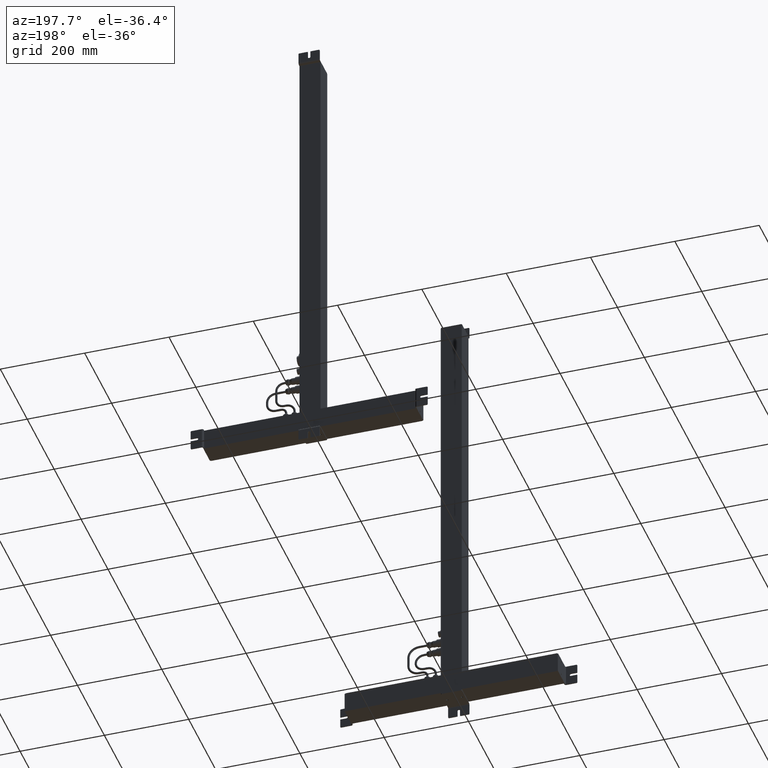
[diagram: clean part render]
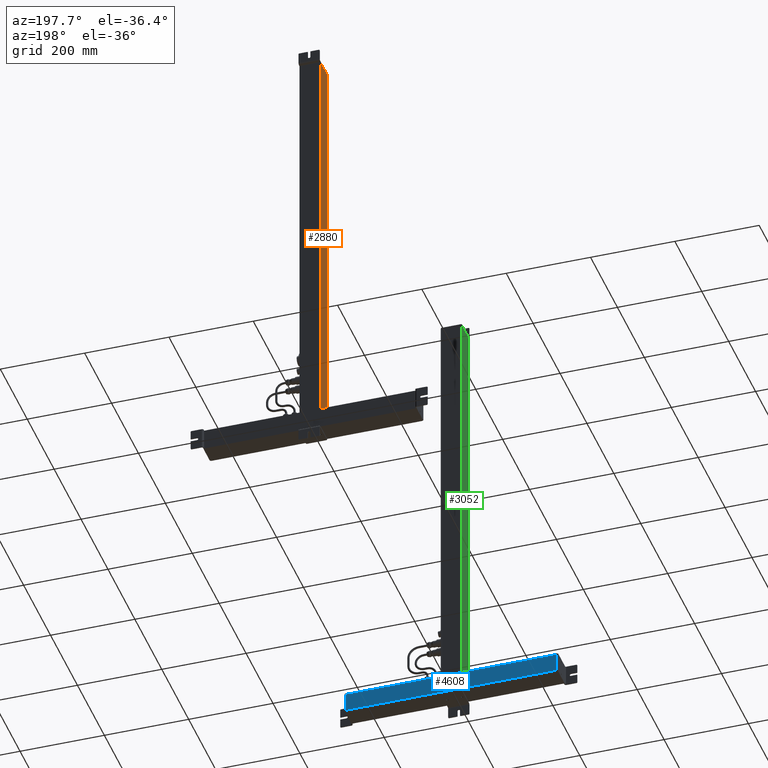
[diagram: same view with three faces highlighted in distinct colors, each labeled with its STEP entity id]
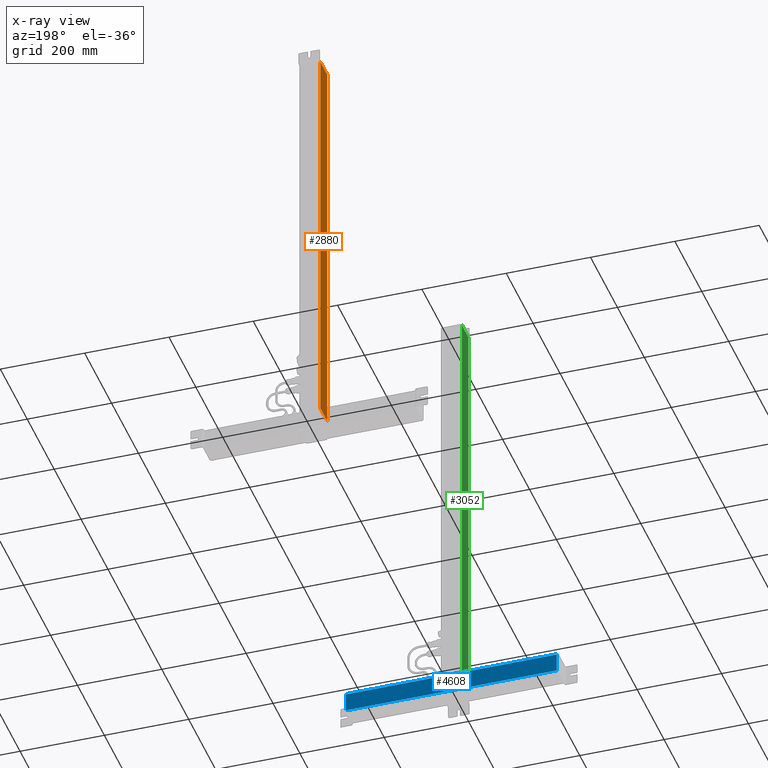
[diagram: x-ray of the same camera — body ghosted, the three highlighted faces saturated]
A machine part, auxiliary view with three faces highlighted in distinct colors.
The next image is the same camera in x-ray (body ghosted, the three faces saturated) — at least one of them is partly hidden behind the body in this view.
Their STEP definitions:

[orange] entity #2880 — the highlighted planar face has unit normal (-1, 0, 0).
#2828=CARTESIAN_POINT('Vertex',(50.,0.,0.)) ;
#2831=CARTESIAN_POINT('Line Origine',(50.,0.,486.)) ;
#2835=CARTESIAN_POINT('Vertex',(50.,0.,972.)) ;
#2850=CARTESIAN_POINT('Axis2P3D Location',(50.,2.90282621546E-015,0.)) ;
#2855=CARTESIAN_POINT('Line Origine',(50.,25.,0.)) ;
#2859=CARTESIAN_POINT('Vertex',(50.,50.,0.)) ;
#2862=CARTESIAN_POINT('Line Origine',(50.,50.,486.)) ;
#2866=CARTESIAN_POINT('Vertex',(50.,50.,972.)) ;
#2869=CARTESIAN_POINT('Line Origine',(50.,25.,972.)) ;
#2832=DIRECTION('Vector Direction',(0.,0.,1.)) ;
#2851=DIRECTION('Axis2P3D Direction',(1.,0.,0.)) ;
#2852=DIRECTION('Axis2P3D XDirection',(0.,1.,0.)) ;
#2856=DIRECTION('Vector Direction',(0.,1.,0.)) ;
#2863=DIRECTION('Vector Direction',(0.,0.,1.)) ;
#2870=DIRECTION('Vector Direction',(0.,1.,0.)) ;
#2853=AXIS2_PLACEMENT_3D('Plane Axis2P3D',#2850,#2851,#2852) ;
#2875=ORIENTED_EDGE('',*,*,#2837,.F.) ;
#2876=ORIENTED_EDGE('',*,*,#2861,.T.) ;
#2877=ORIENTED_EDGE('',*,*,#2868,.T.) ;
#2878=ORIENTED_EDGE('',*,*,#2873,.F.) ;
#2833=VECTOR('Line Direction',#2832,1.) ;
#2857=VECTOR('Line Direction',#2856,1.) ;
#2864=VECTOR('Line Direction',#2863,1.) ;
#2871=VECTOR('Line Direction',#2870,1.) ;
#2880=ADVANCED_FACE('PartBody',(#2879),#2854,.T.) ;
#2837=EDGE_CURVE('',#2829,#2836,#2834,.T.) ;
#2861=EDGE_CURVE('',#2829,#2860,#2858,.T.) ;
#2868=EDGE_CURVE('',#2860,#2867,#2865,.T.) ;
#2873=EDGE_CURVE('',#2836,#2867,#2872,.T.) ;
#2874=EDGE_LOOP('',(#2875,#2876,#2877,#2878)) ;
#2879=FACE_OUTER_BOUND('',#2874,.T.) ;
#2834=LINE('Line',#2831,#2833) ;
#2858=LINE('Line',#2855,#2857) ;
#2865=LINE('Line',#2862,#2864) ;
#2872=LINE('Line',#2869,#2871) ;
#2854=PLANE('Plane',#2853) ;
#2829=VERTEX_POINT('',#2828) ;
#2836=VERTEX_POINT('',#2835) ;
#2860=VERTEX_POINT('',#2859) ;
#2867=VERTEX_POINT('',#2866) ;

[blue] entity #4608 — the highlighted planar face has unit normal (0, 1, 0).
#4525=CARTESIAN_POINT('Vertex',(2.5,49.,0.)) ;
#4528=CARTESIAN_POINT('Line Origine',(25.,49.,0.)) ;
#4532=CARTESIAN_POINT('Vertex',(47.5,49.,0.)) ;
#4565=CARTESIAN_POINT('Vertex',(2.5,49.,500.)) ;
#4568=CARTESIAN_POINT('Line Origine',(2.5,49.,250.)) ;
#4585=CARTESIAN_POINT('Axis2P3D Location',(47.5,49.,0.)) ;
#4590=CARTESIAN_POINT('Line Origine',(47.5,49.,250.)) ;
#4594=CARTESIAN_POINT('Vertex',(47.5,49.,500.)) ;
#4597=CARTESIAN_POINT('Line Origine',(25.,49.,500.)) ;
#4529=DIRECTION('Vector Direction',(-1.,0.,0.)) ;
#4569=DIRECTION('Vector Direction',(0.,0.,1.)) ;
#4586=DIRECTION('Axis2P3D Direction',(0.,1.,-0.)) ;
#4587=DIRECTION('Axis2P3D XDirection',(-1.,0.,0.)) ;
#4591=DIRECTION('Vector Direction',(0.,0.,1.)) ;
#4598=DIRECTION('Vector Direction',(-1.,0.,0.)) ;
#4588=AXIS2_PLACEMENT_3D('Plane Axis2P3D',#4585,#4586,#4587) ;
#4603=ORIENTED_EDGE('',*,*,#4596,.F.) ;
#4604=ORIENTED_EDGE('',*,*,#4534,.F.) ;
#4605=ORIENTED_EDGE('',*,*,#4572,.T.) ;
#4606=ORIENTED_EDGE('',*,*,#4601,.F.) ;
#4530=VECTOR('Line Direction',#4529,1.) ;
#4570=VECTOR('Line Direction',#4569,1.) ;
#4592=VECTOR('Line Direction',#4591,1.) ;
#4599=VECTOR('Line Direction',#4598,1.) ;
#4608=ADVANCED_FACE('Body.2',(#4607),#4589,.T.) ;
#4534=EDGE_CURVE('',#4526,#4533,#4531,.F.) ;
#4572=EDGE_CURVE('',#4526,#4566,#4571,.T.) ;
#4596=EDGE_CURVE('',#4533,#4595,#4593,.T.) ;
#4601=EDGE_CURVE('',#4595,#4566,#4600,.T.) ;
#4602=EDGE_LOOP('',(#4603,#4604,#4605,#4606)) ;
#4607=FACE_OUTER_BOUND('',#4602,.T.) ;
#4531=LINE('Line',#4528,#4530) ;
#4571=LINE('Line',#4568,#4570) ;
#4593=LINE('Line',#4590,#4592) ;
#4600=LINE('Line',#4597,#4599) ;
#4589=PLANE('Plane',#4588) ;
#4526=VERTEX_POINT('',#4525) ;
#4533=VERTEX_POINT('',#4532) ;
#4566=VERTEX_POINT('',#4565) ;
#4595=VERTEX_POINT('',#4594) ;

[green] entity #3052 — the highlighted planar face has unit normal (-1, 0, 0).
#2815=CARTESIAN_POINT('Line Origine',(0.,0.,486.)) ;
#2819=CARTESIAN_POINT('Vertex',(0.,0.,0.)) ;
#2821=CARTESIAN_POINT('Vertex',(0.,0.,972.)) ;
#3009=CARTESIAN_POINT('Vertex',(9.32587340685E-015,50.,0.)) ;
#3012=CARTESIAN_POINT('Line Origine',(7.1054273576E-015,50.,486.)) ;
#3016=CARTESIAN_POINT('Vertex',(9.32587340685E-015,50.,972.)) ;
#3031=CARTESIAN_POINT('Axis2P3D Location',(0.,50.,0.)) ;
#3036=CARTESIAN_POINT('Line Origine',(0.,25.,0.)) ;
#3041=CARTESIAN_POINT('Line Origine',(0.,25.,972.)) ;
#2816=DIRECTION('Vector Direction',(0.,0.,1.)) ;
#3013=DIRECTION('Vector Direction',(0.,0.,1.)) ;
#3032=DIRECTION('Axis2P3D Direction',(-1.,0.,0.)) ;
#3033=DIRECTION('Axis2P3D XDirection',(0.,-1.,0.)) ;
#3037=DIRECTION('Vector Direction',(0.,-1.,0.)) ;
#3042=DIRECTION('Vector Direction',(0.,-1.,0.)) ;
#3034=AXIS2_PLACEMENT_3D('Plane Axis2P3D',#3031,#3032,#3033) ;
#3047=ORIENTED_EDGE('',*,*,#3018,.F.) ;
#3048=ORIENTED_EDGE('',*,*,#3040,.T.) ;
#3049=ORIENTED_EDGE('',*,*,#2823,.T.) ;
#3050=ORIENTED_EDGE('',*,*,#3045,.F.) ;
#2817=VECTOR('Line Direction',#2816,1.) ;
#3014=VECTOR('Line Direction',#3013,1.) ;
#3038=VECTOR('Line Direction',#3037,1.) ;
#3043=VECTOR('Line Direction',#3042,1.) ;
#3052=ADVANCED_FACE('PartBody',(#3051),#3035,.T.) ;
#2823=EDGE_CURVE('',#2820,#2822,#2818,.T.) ;
#3018=EDGE_CURVE('',#3010,#3017,#3015,.T.) ;
#3040=EDGE_CURVE('',#3010,#2820,#3039,.T.) ;
#3045=EDGE_CURVE('',#3017,#2822,#3044,.T.) ;
#3046=EDGE_LOOP('',(#3047,#3048,#3049,#3050)) ;
#3051=FACE_OUTER_BOUND('',#3046,.T.) ;
#2818=LINE('Line',#2815,#2817) ;
#3015=LINE('Line',#3012,#3014) ;
#3039=LINE('Line',#3036,#3038) ;
#3044=LINE('Line',#3041,#3043) ;
#3035=PLANE('Plane',#3034) ;
#2820=VERTEX_POINT('',#2819) ;
#2822=VERTEX_POINT('',#2821) ;
#3010=VERTEX_POINT('',#3009) ;
#3017=VERTEX_POINT('',#3016) ;